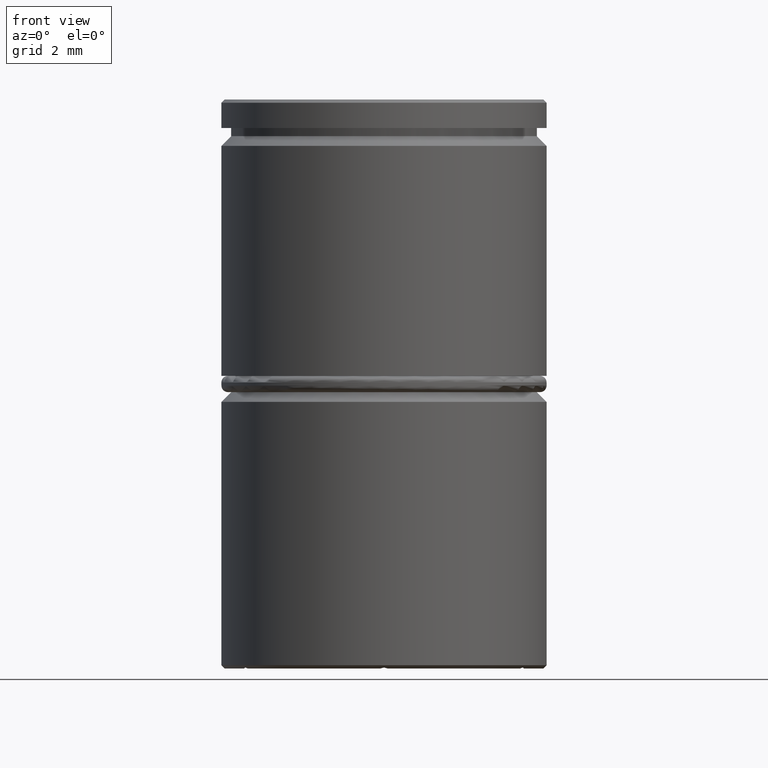
[diagram: clean part render]
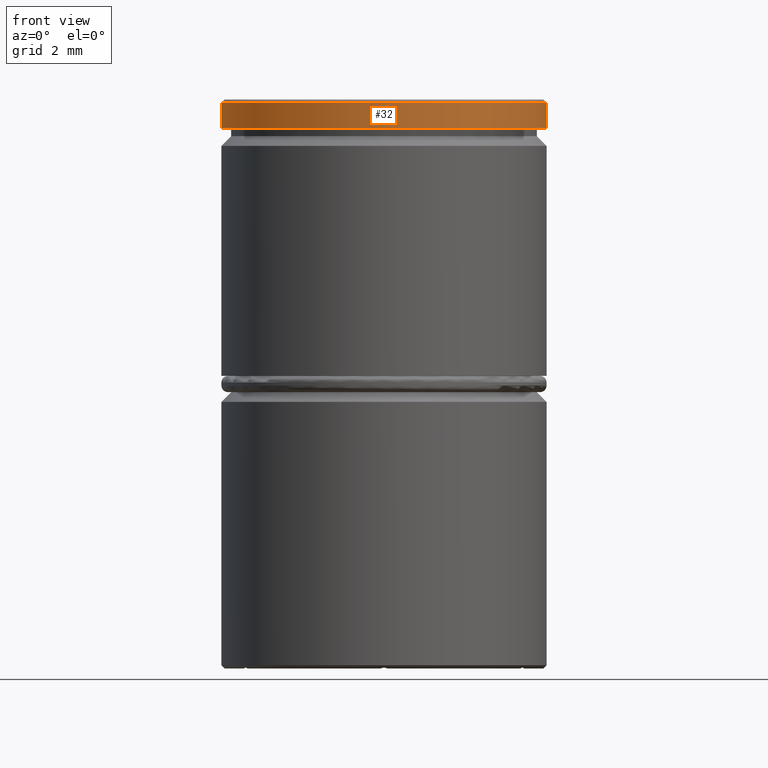
[diagram: same view with one face highlighted and labeled with its STEP entity id]
A machine part, front view. The second image highlights one B-rep face of the part: STEP entity #32.
In plain terms, the highlighted cylindrical surface (partial cylindrical patch) has radius 5 mm, axis along (-0, -0, 1).
Its self-contained STEP definition (entity closure, byte-faithful):
#21 = EDGE_CURVE ( 'NONE', #1161, #1197, #545, .T. ) ;
#32 = ADVANCED_FACE ( 'NONE', ( #1329 ), #807, .T. ) ;
#41 = CARTESIAN_POINT ( 'NONE',  ( 0.000000000000000000, 0.000000000000000000, -0.09999999999999505118 ) ) ;
#116 = LINE ( 'NONE', #760, #551 ) ;
#117 = EDGE_CURVE ( 'NONE', #718, #922, #952, .T. ) ;
#135 = DIRECTION ( 'NONE',  ( -0.000000000000000000, -0.000000000000000000, 1.000000000000000000 ) ) ;
#188 = DIRECTION ( 'NONE',  ( -0.000000000000000000, -0.000000000000000000, 1.000000000000000000 ) ) ;
#292 = CARTESIAN_POINT ( 'NONE',  ( 5.000000000000000000, 0.000000000000000000, -0.09999999999999505118 ) ) ;
#297 = CARTESIAN_POINT ( 'NONE',  ( -5.000000000000000000, 6.123233995736766282E-16, -0.09999999999999505118 ) ) ;
#310 = LINE ( 'NONE', #401, #482 ) ;
#329 = DIRECTION ( 'NONE',  ( 1.000000000000000000, 0.000000000000000000, 0.000000000000000000 ) ) ;
#345 = AXIS2_PLACEMENT_3D ( 'NONE', #756, #135, #329 ) ;
#347 = ORIENTED_EDGE ( 'NONE', *, *, #1165, .T. ) ;
#401 = CARTESIAN_POINT ( 'NONE',  ( 5.000000000000000000, 0.000000000000000000, 0.000000000000000000 ) ) ;
#464 = DIRECTION ( 'NONE',  ( 0.000000000000000000, 0.000000000000000000, -1.000000000000000000 ) ) ;
#482 = VECTOR ( 'NONE', #188, 1000.000000000000000 ) ;
#485 = ORIENTED_EDGE ( 'NONE', *, *, #21, .T. ) ;
#510 = ORIENTED_EDGE ( 'NONE', *, *, #1314, .F. ) ;
#545 = CIRCLE ( 'NONE', #1376, 5.000000000000000000 ) ;
#551 = VECTOR ( 'NONE', #767, 1000.000000000000000 ) ;
#651 = CARTESIAN_POINT ( 'NONE',  ( 5.000000000000000000, 0.000000000000000000, -0.8749999999999998890 ) ) ;
#683 = ORIENTED_EDGE ( 'NONE', *, *, #117, .T. ) ;
#701 = CARTESIAN_POINT ( 'NONE',  ( 0.000000000000000000, 0.000000000000000000, 0.000000000000000000 ) ) ;
#718 = VERTEX_POINT ( 'NONE', #1194 ) ;
#756 = CARTESIAN_POINT ( 'NONE',  ( 0.000000000000000000, 0.000000000000000000, -0.8749999999999998890 ) ) ;
#760 = CARTESIAN_POINT ( 'NONE',  ( -5.000000000000000000, 6.123233995736766282E-16, 0.000000000000000000 ) ) ;
#767 = DIRECTION ( 'NONE',  ( -0.000000000000000000, -0.000000000000000000, 1.000000000000000000 ) ) ;
#807 = CYLINDRICAL_SURFACE ( 'NONE', #1169, 5.000000000000000000 ) ;
#897 = DIRECTION ( 'NONE',  ( 1.000000000000000000, 0.000000000000000000, 0.000000000000000000 ) ) ;
#914 = EDGE_LOOP ( 'NONE', ( #510, #683, #347, #485 ) ) ;
#922 = VERTEX_POINT ( 'NONE', #651 ) ;
#952 = CIRCLE ( 'NONE', #345, 5.000000000000000000 ) ;
#1044 = DIRECTION ( 'NONE',  ( 1.000000000000000000, 0.000000000000000000, 0.000000000000000000 ) ) ;
#1125 = DIRECTION ( 'NONE',  ( -0.000000000000000000, -0.000000000000000000, 1.000000000000000000 ) ) ;
#1161 = VERTEX_POINT ( 'NONE', #292 ) ;
#1165 = EDGE_CURVE ( 'NONE', #922, #1161, #310, .T. ) ;
#1169 = AXIS2_PLACEMENT_3D ( 'NONE', #701, #1125, #1044 ) ;
#1194 = CARTESIAN_POINT ( 'NONE',  ( -5.000000000000000000, 6.123233995736766282E-16, -0.8749999999999998890 ) ) ;
#1197 = VERTEX_POINT ( 'NONE', #297 ) ;
#1314 = EDGE_CURVE ( 'NONE', #718, #1197, #116, .T. ) ;
#1329 = FACE_OUTER_BOUND ( 'NONE', #914, .T. ) ;
#1376 = AXIS2_PLACEMENT_3D ( 'NONE', #41, #464, #897 ) ;